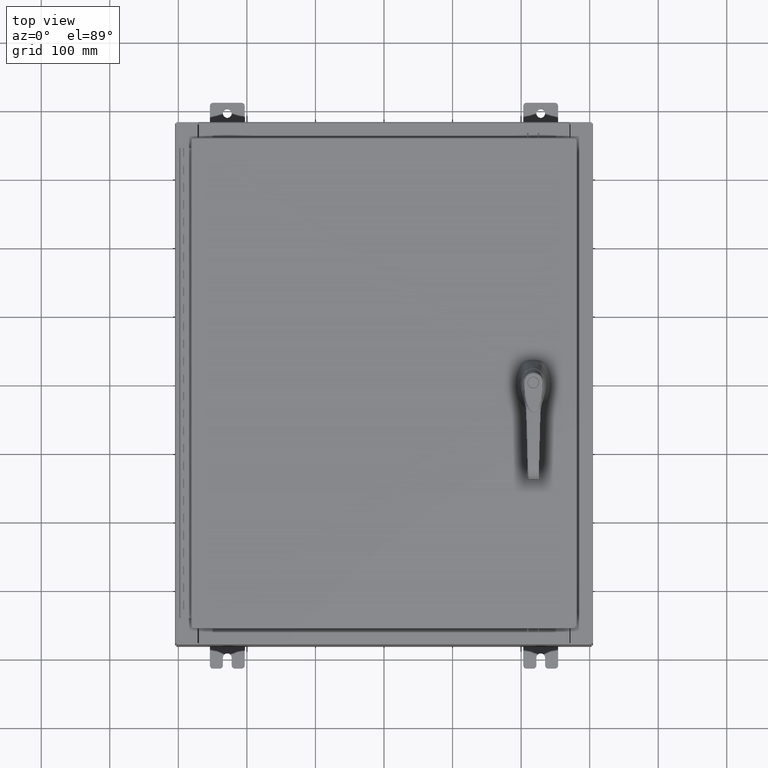
[diagram: clean part render]
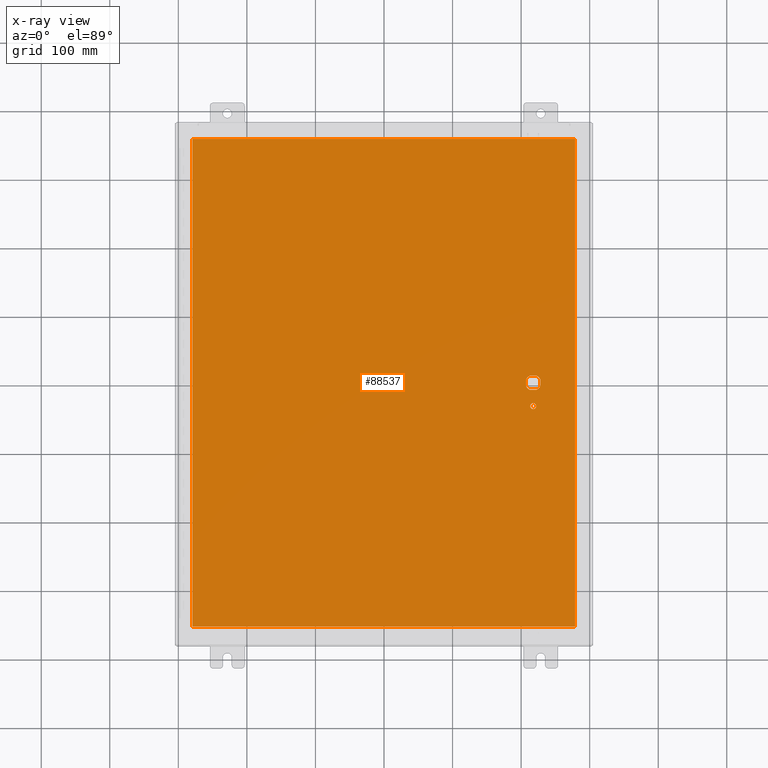
[diagram: x-ray — body ghosted, one internal face saturated and labeled with its STEP entity id]
A machine part, top view, then the same camera in x-ray: the body is ghosted and one INTERNAL B-rep face — a face not visible from any outside direction — is saturated and labeled: STEP entity #88537.
In plain terms, the highlighted planar face has unit normal (0, 0, -1).
Its self-contained STEP definition (entity closure, byte-faithful):
#1076 = CARTESIAN_POINT ( 'NONE',  ( -10.99030000000000000, -14.00629999999999600, -0.07470000000000000300 ) ) ;
#1366 = DIRECTION ( 'NONE',  ( -0.0000000000000000000, -0.0000000000000000000, 1.000000000000000000 ) ) ;
#1608 = LINE ( 'NONE', #38356, #46982 ) ;
#1677 = DIRECTION ( 'NONE',  ( -1.000000000000000000, 0.0000000000000000000, 0.0000000000000000000 ) ) ;
#3319 = ORIENTED_EDGE ( 'NONE', *, *, #6197, .T. ) ;
#4832 = AXIS2_PLACEMENT_3D ( 'NONE', #41753, #104951, #50852 ) ;
#4920 = LINE ( 'NONE', #26734, #74295 ) ;
#6197 = EDGE_CURVE ( 'NONE', #62461, #35418, #102134, .T. ) ;
#8180 = CARTESIAN_POINT ( 'NONE',  ( 8.377772629243690300, 0.4029999999999252000, -0.07470000000000003000 ) ) ;
#8259 = LINE ( 'NONE', #74355, #101605 ) ;
#9328 = EDGE_CURVE ( 'NONE', #112627, #24450, #90660, .T. ) ;
#12117 = EDGE_LOOP ( 'NONE', ( #113874, #103174, #113498, #69532 ) ) ;
#12252 = CARTESIAN_POINT ( 'NONE',  ( 8.980999999999925300, 2.450686610769032800E-014, -0.07470000000000003000 ) ) ;
#15352 = EDGE_CURVE ( 'NONE', #110675, #50298, #65659, .T. ) ;
#15592 = EDGE_CURVE ( 'NONE', #88318, #89327, #4920, .T. ) ;
#17221 = CARTESIAN_POINT ( 'NONE',  ( 8.980999999999925300, 0.2002273707563080300, -0.07470000000000003000 ) ) ;
#18018 = VERTEX_POINT ( 'NONE', #86730 ) ;
#18579 = DIRECTION ( 'NONE',  ( -0.0000000000000000000, -0.0000000000000000000, 1.000000000000000000 ) ) ;
#21156 = EDGE_CURVE ( 'NONE', #57644, #35418, #59468, .T. ) ;
#21175 = FACE_BOUND ( 'NONE', #55279, .T. ) ;
#22481 = DIRECTION ( 'NONE',  ( 1.000000000000000000, 0.0000000000000000000, 0.0000000000000000000 ) ) ;
#24335 = EDGE_CURVE ( 'NONE', #50298, #98870, #49154, .T. ) ;
#24450 = VERTEX_POINT ( 'NONE', #27545 ) ;
#25063 = CARTESIAN_POINT ( 'NONE',  ( 8.778227370756310300, 0.4029999999999250300, -0.07470000000000003000 ) ) ;
#26636 = AXIS2_PLACEMENT_3D ( 'NONE', #30103, #93280, #39140 ) ;
#26734 = CARTESIAN_POINT ( 'NONE',  ( 10.99030000000000000, 14.00629999999999800, -0.07470000000000019700 ) ) ;
#27545 = CARTESIAN_POINT ( 'NONE',  ( 10.99030000000000000, -14.00629999999999800, -0.07470000000000000300 ) ) ;
#28137 = CIRCLE ( 'NONE', #68326, 0.1715000000000011500 ) ;
#29303 = DIRECTION ( 'NONE',  ( 0.0000000000000000000, -1.000000000000000000, 0.0000000000000000000 ) ) ;
#30103 = CARTESIAN_POINT ( 'NONE',  ( 8.577999999999999400, 0.0000000000000000000, -0.07470000000000003000 ) ) ;
#30210 = AXIS2_PLACEMENT_3D ( 'NONE', #98305, #44177, #107380 ) ;
#30456 = CARTESIAN_POINT ( 'NONE',  ( -10.99030000000000000, 14.00629999999999800, -0.07470000000000000300 ) ) ;
#30691 = CARTESIAN_POINT ( 'NONE',  ( 10.99030000000000000, 14.00629999999999800, -0.07470000000000000300 ) ) ;
#34999 = DIRECTION ( 'NONE',  ( 0.0000000000000000000, 0.0000000000000000000, -1.000000000000000000 ) ) ;
#35388 = CARTESIAN_POINT ( 'NONE',  ( 8.406499999999999400, -1.338000000000000100, -0.07470000000000003000 ) ) ;
#35418 = VERTEX_POINT ( 'NONE', #76264 ) ;
#35437 = ORIENTED_EDGE ( 'NONE', *, *, #43304, .T. ) ;
#35685 = DIRECTION ( 'NONE',  ( -0.0000000000000000000, -0.0000000000000000000, 1.000000000000000000 ) ) ;
#37076 = CARTESIAN_POINT ( 'NONE',  ( 8.175000000000073500, 0.2002273707563080300, -0.07470000000000003000 ) ) ;
#38356 = CARTESIAN_POINT ( 'NONE',  ( -10.99030000000000000, 14.00630000000000100, -0.07470000000000019700 ) ) ;
#38561 = AXIS2_PLACEMENT_3D ( 'NONE', #89812, #35685, #98857 ) ;
#39140 = DIRECTION ( 'NONE',  ( -1.000000000000000000, 0.0000000000000000000, 0.0000000000000000000 ) ) ;
#39828 = LINE ( 'NONE', #112592, #61076 ) ;
#40053 = EDGE_CURVE ( 'NONE', #109147, #62461, #39828, .T. ) ;
#40413 = ORIENTED_EDGE ( 'NONE', *, *, #59445, .T. ) ;
#41753 = CARTESIAN_POINT ( 'NONE',  ( 8.577999999999999400, 0.0000000000000000000, -0.07470000000000003000 ) ) ;
#42509 = VECTOR ( 'NONE', #86971, 39.37007874015748100 ) ;
#43304 = EDGE_CURVE ( 'NONE', #98870, #109147, #108684, .T. ) ;
#44092 = DIRECTION ( 'NONE',  ( 0.0000000000000000000, -1.000000000000000000, 0.0000000000000000000 ) ) ;
#44177 = DIRECTION ( 'NONE',  ( -0.0000000000000000000, -0.0000000000000000000, 1.000000000000000000 ) ) ;
#46665 = EDGE_CURVE ( 'NONE', #57644, #115317, #77304, .T. ) ;
#46982 = VECTOR ( 'NONE', #29303, 39.37007874015748100 ) ;
#47311 = LINE ( 'NONE', #55564, #92571 ) ;
#48073 = FACE_BOUND ( 'NONE', #110988, .T. ) ;
#49154 = LINE ( 'NONE', #108113, #97211 ) ;
#50298 = VERTEX_POINT ( 'NONE', #37076 ) ;
#50852 = DIRECTION ( 'NONE',  ( -1.000000000000000000, 0.0000000000000000000, 0.0000000000000000000 ) ) ;
#53814 = VECTOR ( 'NONE', #66453, 39.37007874015748100 ) ;
#55279 = EDGE_LOOP ( 'NONE', ( #3319, #88260, #77628, #40413, #63470, #82481, #35437, #95320 ) ) ;
#55564 = CARTESIAN_POINT ( 'NONE',  ( 0.0000000000000000000, 0.4029999999999252000, -0.07470000000000003000 ) ) ;
#55661 = CARTESIAN_POINT ( 'NONE',  ( 8.577999999999999400, -1.338000000000000100, -0.07470000000000003000 ) ) ;
#57644 = VERTEX_POINT ( 'NONE', #17221 ) ;
#59445 = EDGE_CURVE ( 'NONE', #115317, #110675, #47311, .T. ) ;
#59468 = LINE ( 'NONE', #12252, #53814 ) ;
#60524 = AXIS2_PLACEMENT_3D ( 'NONE', #89134, #34999, #98192 ) ;
#61076 = VECTOR ( 'NONE', #22481, 39.37007874015748100 ) ;
#61699 = CARTESIAN_POINT ( 'NONE',  ( 8.778227370756310300, -0.4029999999999252000, -0.07470000000000003000 ) ) ;
#62461 = VERTEX_POINT ( 'NONE', #61699 ) ;
#63470 = ORIENTED_EDGE ( 'NONE', *, *, #15352, .T. ) ;
#64714 = DIRECTION ( 'NONE',  ( -1.000000000000000000, 0.0000000000000000000, 0.0000000000000000000 ) ) ;
#65659 = CIRCLE ( 'NONE', #4832, 0.4499999999999156900 ) ;
#66453 = DIRECTION ( 'NONE',  ( 2.728745808672812900E-015, -1.000000000000000000, 0.0000000000000000000 ) ) ;
#68326 = AXIS2_PLACEMENT_3D ( 'NONE', #72784, #18579, #81845 ) ;
#68780 = CARTESIAN_POINT ( 'NONE',  ( -10.99029999999999600, -14.00629999999999800, -0.07470000000000019700 ) ) ;
#69532 = ORIENTED_EDGE ( 'NONE', *, *, #15592, .F. ) ;
#71557 = EDGE_CURVE ( 'NONE', #89327, #112627, #1608, .T. ) ;
#72784 = CARTESIAN_POINT ( 'NONE',  ( 8.577999999999999400, -1.338000000000000100, -0.07470000000000003000 ) ) ;
#73190 = AXIS2_PLACEMENT_3D ( 'NONE', #55661, #1366, #64714 ) ;
#74295 = VECTOR ( 'NONE', #80881, 39.37007874015748100 ) ;
#74355 = CARTESIAN_POINT ( 'NONE',  ( 10.99030000000000000, -14.00629999999999800, -0.07470000000000019700 ) ) ;
#76264 = CARTESIAN_POINT ( 'NONE',  ( 8.980999999999925300, -0.2002273707563075900, -0.07470000000000003000 ) ) ;
#77304 = CIRCLE ( 'NONE', #26636, 0.4499999999999156900 ) ;
#77628 = ORIENTED_EDGE ( 'NONE', *, *, #46665, .T. ) ;
#78616 = CARTESIAN_POINT ( 'NONE',  ( 8.377772629243690300, -0.4029999999999250300, -0.07470000000000003000 ) ) ;
#80881 = DIRECTION ( 'NONE',  ( -1.000000000000000000, -0.0000000000000000000, -0.0000000000000000000 ) ) ;
#81845 = DIRECTION ( 'NONE',  ( -1.000000000000000000, 0.0000000000000000000, 0.0000000000000000000 ) ) ;
#82481 = ORIENTED_EDGE ( 'NONE', *, *, #24335, .T. ) ;
#83207 = ORIENTED_EDGE ( 'NONE', *, *, #83875, .T. ) ;
#83450 = DIRECTION ( 'NONE',  ( 0.0000000000000000000, 1.000000000000000000, 0.0000000000000000000 ) ) ;
#83875 = EDGE_CURVE ( 'NONE', #111981, #18018, #97232, .T. ) ;
#86730 = CARTESIAN_POINT ( 'NONE',  ( 8.749500000000001200, -1.338000000000000100, -0.07470000000000003000 ) ) ;
#86971 = DIRECTION ( 'NONE',  ( 1.000000000000000000, -0.0000000000000000000, -0.0000000000000000000 ) ) ;
#88260 = ORIENTED_EDGE ( 'NONE', *, *, #21156, .F. ) ;
#88318 = VERTEX_POINT ( 'NONE', #30691 ) ;
#88537 = ADVANCED_FACE ( 'NONE', ( #48073, #117346, #21175 ), #115991, .T. ) ;
#89134 = CARTESIAN_POINT ( 'NONE',  ( 0.0000000000000000000, 0.0000000000000000000, -0.07470000000000000300 ) ) ;
#89327 = VERTEX_POINT ( 'NONE', #30456 ) ;
#89812 = CARTESIAN_POINT ( 'NONE',  ( 8.577999999999999400, 0.0000000000000000000, -0.07470000000000003000 ) ) ;
#90660 = LINE ( 'NONE', #68780, #42509 ) ;
#92571 = VECTOR ( 'NONE', #1677, 39.37007874015748100 ) ;
#93280 = DIRECTION ( 'NONE',  ( -0.0000000000000000000, -0.0000000000000000000, 1.000000000000000000 ) ) ;
#95320 = ORIENTED_EDGE ( 'NONE', *, *, #40053, .T. ) ;
#95499 = ORIENTED_EDGE ( 'NONE', *, *, #106985, .T. ) ;
#97211 = VECTOR ( 'NONE', #44092, 39.37007874015748100 ) ;
#97232 = CIRCLE ( 'NONE', #73190, 0.1715000000000011500 ) ;
#98192 = DIRECTION ( 'NONE',  ( -1.000000000000000000, 0.0000000000000000000, -0.0000000000000000000 ) ) ;
#98305 = CARTESIAN_POINT ( 'NONE',  ( 8.577999999999999400, 0.0000000000000000000, -0.07470000000000003000 ) ) ;
#98857 = DIRECTION ( 'NONE',  ( -1.000000000000000000, 8.881784197001256300E-016, 0.0000000000000000000 ) ) ;
#98870 = VERTEX_POINT ( 'NONE', #115627 ) ;
#101605 = VECTOR ( 'NONE', #83450, 39.37007874015748100 ) ;
#102134 = CIRCLE ( 'NONE', #30210, 0.4499999999999156900 ) ;
#103174 = ORIENTED_EDGE ( 'NONE', *, *, #9328, .F. ) ;
#104951 = DIRECTION ( 'NONE',  ( -0.0000000000000000000, -0.0000000000000000000, 1.000000000000000000 ) ) ;
#106985 = EDGE_CURVE ( 'NONE', #18018, #111981, #28137, .T. ) ;
#107380 = DIRECTION ( 'NONE',  ( -1.000000000000000000, 1.776356839400251300E-015, 0.0000000000000000000 ) ) ;
#108113 = CARTESIAN_POINT ( 'NONE',  ( 8.175000000000073500, 0.0000000000000000000, -0.07470000000000003000 ) ) ;
#108684 = CIRCLE ( 'NONE', #38561, 0.4499999999999156900 ) ;
#109147 = VERTEX_POINT ( 'NONE', #78616 ) ;
#110675 = VERTEX_POINT ( 'NONE', #8180 ) ;
#110988 = EDGE_LOOP ( 'NONE', ( #95499, #83207 ) ) ;
#111981 = VERTEX_POINT ( 'NONE', #35388 ) ;
#112592 = CARTESIAN_POINT ( 'NONE',  ( 0.0000000000000000000, -0.4029999999999252000, -0.07470000000000003000 ) ) ;
#112627 = VERTEX_POINT ( 'NONE', #1076 ) ;
#113498 = ORIENTED_EDGE ( 'NONE', *, *, #71557, .F. ) ;
#113782 = EDGE_CURVE ( 'NONE', #24450, #88318, #8259, .T. ) ;
#113874 = ORIENTED_EDGE ( 'NONE', *, *, #113782, .F. ) ;
#115317 = VERTEX_POINT ( 'NONE', #25063 ) ;
#115627 = CARTESIAN_POINT ( 'NONE',  ( 8.175000000000073500, -0.2002273707563079800, -0.07470000000000003000 ) ) ;
#115991 = PLANE ( 'NONE',  #60524 ) ;
#117346 = FACE_OUTER_BOUND ( 'NONE', #12117, .T. ) ;